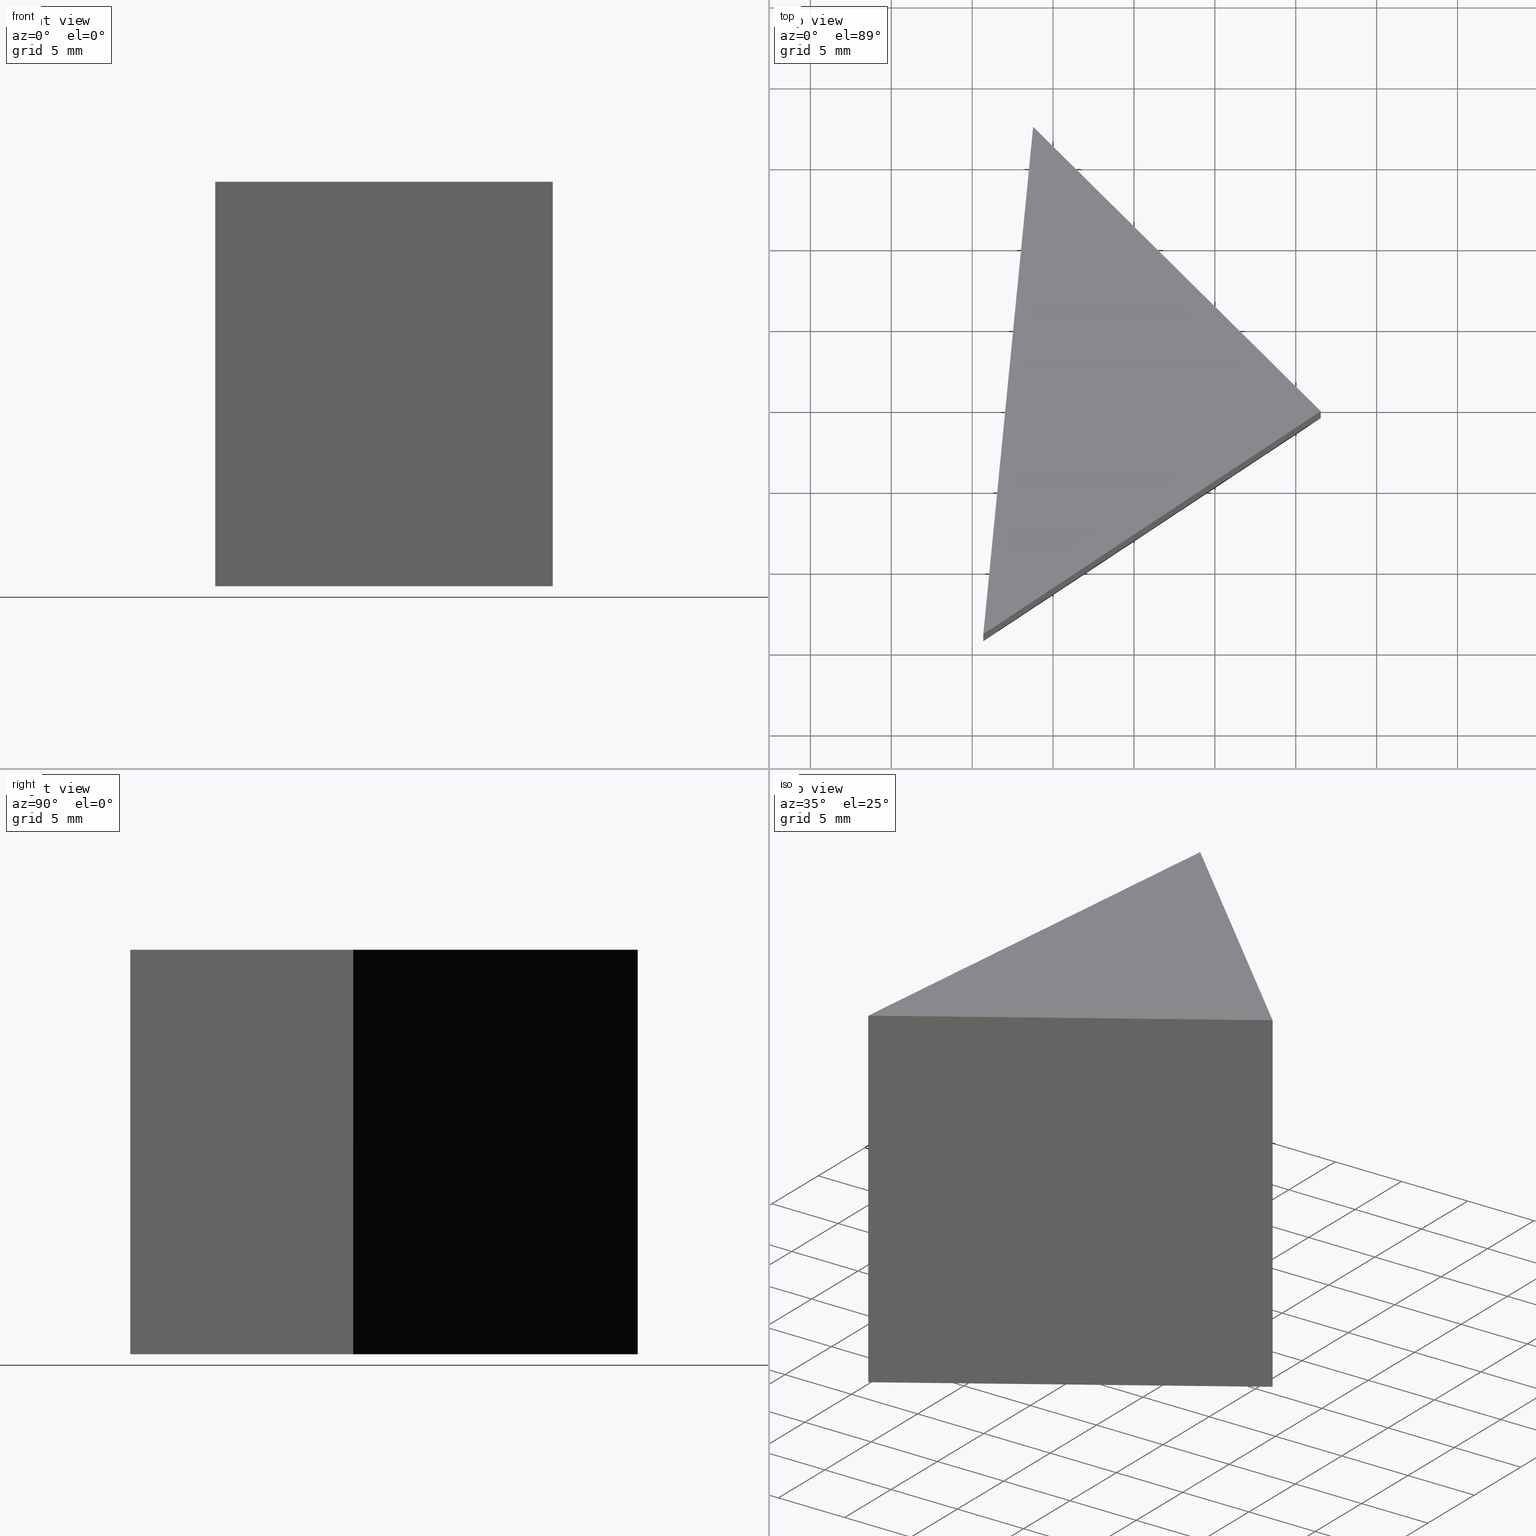
[diagram: canonical four-view strip — front | top / right | iso, engineering-drawing reading convention]
A machine part, canonical four-view strip (front | top / right | iso — engineering-drawing reading convention). The complete STEP part file that produces these views, byte-faithful:
ISO-10303-21;
HEADER;
FILE_DESCRIPTION (( 'STEP AP214' ),
    '1' );
FILE_NAME ('469005.STEP',
    '2019-08-23T05:46:01',
    ( 'user' ),
    ( '΢���й�' ),
    'SwSTEP 2.0',
    'SolidWorks 2016',
    '' );
FILE_SCHEMA (( 'AUTOMOTIVE_DESIGN' ));
ENDSEC;

DATA;
#1 = LINE ( 'NONE', #17, #63 ) ;
#2 = ORIENTED_EDGE ( 'NONE', *, *, #49, .T. ) ;
#3 = ADVANCED_BREP_SHAPE_REPRESENTATION ( '469005', ( #39, #70 ), #143 ) ;
#4 = AXIS2_PLACEMENT_3D ( 'NONE', #106, #128, #51 ) ;
#5 = VERTEX_POINT ( 'NONE', #54 ) ;
#6 = PRESENTATION_STYLE_ASSIGNMENT (( #140 ) ) ;
#7 =( NAMED_UNIT ( * ) PLANE_ANGLE_UNIT ( ) SI_UNIT ( $, .RADIAN. ) );
#8 = PRODUCT_RELATED_PRODUCT_CATEGORY ( 'part', '', ( #84 ) ) ;
#9 = CARTESIAN_POINT ( 'NONE',  ( 21.54217066758669200, 14.63250925510907100, 25.00000000000000000 ) ) ;
#10 = DIRECTION ( 'NONE',  ( -0.5514015260034010900, 0.8342399877260263700, 0.0000000000000000000 ) ) ;
#11 = SURFACE_STYLE_USAGE ( .BOTH. , #146 ) ;
#12 = ORIENTED_EDGE ( 'NONE', *, *, #100, .T. ) ;
#13 = VECTOR ( 'NONE', #78, 1000.000000000000000 ) ;
#14 = CARTESIAN_POINT ( 'NONE',  ( 21.54217066758669200, 14.63250925510907100, 25.00000000000000000 ) ) ;
#15 = COLOUR_RGB ( '',1.000000000000000000, 1.000000000000000000, 1.000000000000000000 ) ;
#16 = APPLICATION_PROTOCOL_DEFINITION ( 'draft international standard', 'automotive_design', 1998, #94 ) ;
#17 = CARTESIAN_POINT ( 'NONE',  ( 0.6861709744360347000, 0.8474711050240408800, 0.0000000000000000000 ) ) ;
#18 = DIRECTION ( 'NONE',  ( 0.0000000000000000000, 0.0000000000000000000, 1.000000000000000000 ) ) ;
#19 = EDGE_LOOP ( 'NONE', ( #150, #2, #88 ) ) ;
#20 = SHAPE_DEFINITION_REPRESENTATION ( #107, #3 ) ;
#21 = ORIENTED_EDGE ( 'NONE', *, *, #34, .T. ) ;
#22 = EDGE_LOOP ( 'NONE', ( #42, #103, #155, #21 ) ) ;
#23 = SURFACE_SIDE_STYLE ('',( #148 ) ) ;
#24 = PLANE ( 'NONE',  #4 ) ;
#25 = ADVANCED_FACE ( 'NONE', ( #160 ), #30, .F. ) ;
#26 = EDGE_CURVE ( 'NONE', #32, #5, #28, .T. ) ;
#27 = DIRECTION ( 'NONE',  ( 1.000000000000000000, 0.0000000000000000000, 0.0000000000000000000 ) ) ;
#28 = LINE ( 'NONE', #156, #126 ) ;
#29 =( NAMED_UNIT ( * ) SI_UNIT ( $, .STERADIAN. ) SOLID_ANGLE_UNIT ( ) );
#30 = PLANE ( 'NONE',  #72 ) ;
#31 = PRESENTATION_LAYER_ASSIGNMENT (  '', '', ( #91 ) ) ;
#32 = VERTEX_POINT ( 'NONE', #98 ) ;
#33 = VERTEX_POINT ( 'NONE', #144 ) ;
#34 = EDGE_CURVE ( 'NONE', #5, #85, #95, .T. ) ;
#35 = EDGE_CURVE ( 'NONE', #33, #141, #122, .T. ) ;
#36 = LINE ( 'NONE', #90, #66 ) ;
#37 = VECTOR ( 'NONE', #64, 999.9999999999998900 ) ;
#38 = VERTEX_POINT ( 'NONE', #59 ) ;
#39 = MANIFOLD_SOLID_BREP ( '͹̨-����1', #169 ) ;
#40 = DIRECTION ( 'NONE',  ( 0.09777970958415356500, 0.9952080829623715100, 0.0000000000000000000 ) ) ;
#41 = MECHANICAL_DESIGN_GEOMETRIC_PRESENTATION_REPRESENTATION (  '', ( #91 ), #136 ) ;
#42 = ORIENTED_EDGE ( 'NONE', *, *, #149, .T. ) ;
#43 = DIRECTION ( 'NONE',  ( -0.09777970958415356500, -0.9952080829623715100, -0.0000000000000000000 ) ) ;
#44 = ORIENTED_EDGE ( 'NONE', *, *, #35, .T. ) ;
#45 = ADVANCED_FACE ( 'NONE', ( #159 ), #81, .F. ) ;
#46 = ADVANCED_FACE ( 'NONE', ( #167 ), #135, .F. ) ;
#47 = ORIENTED_EDGE ( 'NONE', *, *, #35, .F. ) ;
#48 = UNCERTAINTY_MEASURE_WITH_UNIT (LENGTH_MEASURE( 1.000000000000000100E-005 ), #139, 'distance_accuracy_value', 'NONE');
#49 = EDGE_CURVE ( 'NONE', #38, #32, #75, .T. ) ;
#50 = CARTESIAN_POINT ( 'NONE',  ( 21.54217066758669200, 14.63250925510907100, 25.00000000000000000 ) ) ;
#51 = DIRECTION ( 'NONE',  ( -1.000000000000000000, 0.0000000000000000000, 0.0000000000000000000 ) ) ;
#52 = EDGE_LOOP ( 'NONE', ( #158, #58, #47 ) ) ;
#53 = LINE ( 'NONE', #50, #151 ) ;
#54 = CARTESIAN_POINT ( 'NONE',  ( 0.6861709744360347000, 0.8474711050240408800, 25.00000000000000000 ) ) ;
#55 = MECHANICAL_DESIGN_GEOMETRIC_PRESENTATION_REPRESENTATION (  '', ( #108 ), #74 ) ;
#56 = CARTESIAN_POINT ( 'NONE',  ( 0.6861709744360347000, 0.8474711050240408800, 25.00000000000000000 ) ) ;
#57 =( LENGTH_UNIT ( ) NAMED_UNIT ( * ) SI_UNIT ( .MILLI., .METRE. ) );
#58 = ORIENTED_EDGE ( 'NONE', *, *, #86, .F. ) ;
#59 = CARTESIAN_POINT ( 'NONE',  ( 21.54217066758669200, 14.63250925510907100, 25.00000000000000000 ) ) ;
#60 = LINE ( 'NONE', #164, #13 ) ;
#61 = PRESENTATION_LAYER_ASSIGNMENT (  '', '', ( #108 ) ) ;
#62 = VECTOR ( 'NONE', #124, 1000.000000000000000 ) ;
#63 = VECTOR ( 'NONE', #127, 1000.000000000000100 ) ;
#64 = DIRECTION ( 'NONE',  ( -0.7109728236074630600, 0.7032194850056640000, 0.0000000000000000000 ) ) ;
#65 = DIRECTION ( 'NONE',  ( -0.7109728236074630600, 0.7032194850056640000, 0.0000000000000000000 ) ) ;
#66 = VECTOR ( 'NONE', #117, 1000.000000000000000 ) ;
#67 = FILL_AREA_STYLE ('',( #96 ) ) ;
#68 = EDGE_LOOP ( 'NONE', ( #44, #147, #161, #69 ) ) ;
#69 = ORIENTED_EDGE ( 'NONE', *, *, #153, .T. ) ;
#70 = AXIS2_PLACEMENT_3D ( 'NONE', #111, #18, #27 ) ;
#71 = DIRECTION ( 'NONE',  ( -0.8342399877260263700, -0.5514015260034010900, 0.0000000000000000000 ) ) ;
#72 = AXIS2_PLACEMENT_3D ( 'NONE', #56, #130, #40 ) ;
#73 = EDGE_CURVE ( 'NONE', #5, #38, #112, .T. ) ;
#74 =( GEOMETRIC_REPRESENTATION_CONTEXT ( 3 ) GLOBAL_UNCERTAINTY_ASSIGNED_CONTEXT ( ( #134 ) ) GLOBAL_UNIT_ASSIGNED_CONTEXT ( ( #57, #7, #168 ) ) REPRESENTATION_CONTEXT ( 'NONE', 'WORKASPACE' ) );
#75 = LINE ( 'NONE', #113, #99 ) ;
#76 = PRODUCT_DEFINITION ( 'δ֪', '', #105, #83 ) ;
#77 = AXIS2_PLACEMENT_3D ( 'NONE', #162, #82, #129 ) ;
#78 = DIRECTION ( 'NONE',  ( 0.8342399877260263700, 0.5514015260034012000, -0.0000000000000000000 ) ) ;
#79 = DIRECTION ( 'NONE',  ( 0.8342399877260263700, 0.5514015260034012000, -0.0000000000000000000 ) ) ;
#80 = DIRECTION ( 'NONE',  ( 0.0000000000000000000, 0.0000000000000000000, -1.000000000000000000 ) ) ;
#81 = PLANE ( 'NONE',  #115 ) ;
#82 = DIRECTION ( 'NONE',  ( -0.7032194850056640000, -0.7109728236074630600, 0.0000000000000000000 ) ) ;
#83 = PRODUCT_DEFINITION_CONTEXT ( 'detailed design', #94, 'design' ) ;
#84 = PRODUCT ( '469005', '469005', '', ( #125 ) ) ;
#85 = VERTEX_POINT ( 'NONE', #114 ) ;
#86 = EDGE_CURVE ( 'NONE', #141, #85, #1, .T. ) ;
#87 = FACE_OUTER_BOUND ( 'NONE', #52, .T. ) ;
#88 = ORIENTED_EDGE ( 'NONE', *, *, #26, .T. ) ;
#89 = PRESENTATION_STYLE_ASSIGNMENT (( #11 ) ) ;
#90 = CARTESIAN_POINT ( 'NONE',  ( 3.767850077400120700, 32.21299638025067200, 25.00000000000000000 ) ) ;
#91 = STYLED_ITEM ( 'NONE', ( #6 ), #3 ) ;
#92 = DIRECTION ( 'NONE',  ( -1.000000000000000000, 0.0000000000000000000, 0.0000000000000000000 ) ) ;
#93 = ORIENTED_EDGE ( 'NONE', *, *, #26, .F. ) ;
#94 = APPLICATION_CONTEXT ( 'automotive_design' ) ;
#95 = LINE ( 'NONE', #152, #62 ) ;
#96 = FILL_AREA_STYLE_COLOUR ( '', #132 ) ;
#97 = APPLICATION_CONTEXT ( 'automotive_design' ) ;
#98 = CARTESIAN_POINT ( 'NONE',  ( 3.767850077400120700, 32.21299638025067200, 25.00000000000000000 ) ) ;
#99 = VECTOR ( 'NONE', #65, 999.9999999999998900 ) ;
#100 = EDGE_CURVE ( 'NONE', #32, #141, #36, .T. ) ;
#101 = VECTOR ( 'NONE', #79, 1000.000000000000000 ) ;
#102 = SURFACE_STYLE_FILL_AREA ( #67 ) ;
#103 = ORIENTED_EDGE ( 'NONE', *, *, #153, .F. ) ;
#104 = APPLICATION_PROTOCOL_DEFINITION ( 'draft international standard', 'automotive_design', 1998, #97 ) ;
#105 = PRODUCT_DEFINITION_FORMATION_WITH_SPECIFIED_SOURCE ( '�κ�', '', #84, .NOT_KNOWN. ) ;
#106 = CARTESIAN_POINT ( 'NONE',  ( 0.0000000000000000000, 0.0000000000000000000, 25.00000000000000000 ) ) ;
#107 = PRODUCT_DEFINITION_SHAPE ( 'NONE', 'NONE',  #76 ) ;
#108 = STYLED_ITEM ( 'NONE', ( #89 ), #39 ) ;
#109 = DIRECTION ( 'NONE',  ( -0.0000000000000000000, -0.0000000000000000000, -1.000000000000000000 ) ) ;
#110 =( NAMED_UNIT ( * ) PLANE_ANGLE_UNIT ( ) SI_UNIT ( $, .RADIAN. ) );
#111 = CARTESIAN_POINT ( 'NONE',  ( 0.0000000000000000000, 0.0000000000000000000, 0.0000000000000000000 ) ) ;
#112 = LINE ( 'NONE', #9, #101 ) ;
#113 = CARTESIAN_POINT ( 'NONE',  ( 21.54217066758669200, 14.63250925510907100, 25.00000000000000000 ) ) ;
#114 = CARTESIAN_POINT ( 'NONE',  ( 0.6861709744360347000, 0.8474711050240408800, 0.0000000000000000000 ) ) ;
#115 = AXIS2_PLACEMENT_3D ( 'NONE', #14, #10, #71 ) ;
#116 = ORIENTED_EDGE ( 'NONE', *, *, #34, .F. ) ;
#117 = DIRECTION ( 'NONE',  ( -0.0000000000000000000, -0.0000000000000000000, -1.000000000000000000 ) ) ;
#118 =( NAMED_UNIT ( * ) SI_UNIT ( $, .STERADIAN. ) SOLID_ANGLE_UNIT ( ) );
#119 = FILL_AREA_STYLE_COLOUR ( '', #15 ) ;
#120 = ORIENTED_EDGE ( 'NONE', *, *, #86, .T. ) ;
#121 = EDGE_LOOP ( 'NONE', ( #120, #116, #93, #12 ) ) ;
#122 = LINE ( 'NONE', #142, #37 ) ;
#123 = UNCERTAINTY_MEASURE_WITH_UNIT (LENGTH_MEASURE( 1.000000000000000100E-005 ), #166, 'distance_accuracy_value', 'NONE');
#124 = DIRECTION ( 'NONE',  ( -0.0000000000000000000, -0.0000000000000000000, -1.000000000000000000 ) ) ;
#125 = PRODUCT_CONTEXT ( 'NONE', #97, 'mechanical' ) ;
#126 = VECTOR ( 'NONE', #43, 1000.000000000000100 ) ;
#127 = DIRECTION ( 'NONE',  ( -0.09777970958415356500, -0.9952080829623715100, -0.0000000000000000000 ) ) ;
#128 = DIRECTION ( 'NONE',  ( 0.0000000000000000000, 0.0000000000000000000, -1.000000000000000000 ) ) ;
#129 = DIRECTION ( 'NONE',  ( 0.7109728236074630600, -0.7032194850056640000, 0.0000000000000000000 ) ) ;
#130 = DIRECTION ( 'NONE',  ( 0.9952080829623715100, -0.09777970958415356500, 0.0000000000000000000 ) ) ;
#131 = FILL_AREA_STYLE ('',( #119 ) ) ;
#132 = COLOUR_RGB ( '',1.000000000000000000, 1.000000000000000000, 1.000000000000000000 ) ;
#133 = FACE_OUTER_BOUND ( 'NONE', #19, .T. ) ;
#134 = UNCERTAINTY_MEASURE_WITH_UNIT (LENGTH_MEASURE( 1.000000000000000100E-005 ), #57, 'distance_accuracy_value', 'NONE');
#135 = PLANE ( 'NONE',  #77 ) ;
#136 =( GEOMETRIC_REPRESENTATION_CONTEXT ( 3 ) GLOBAL_UNCERTAINTY_ASSIGNED_CONTEXT ( ( #123 ) ) GLOBAL_UNIT_ASSIGNED_CONTEXT ( ( #166, #110, #29 ) ) REPRESENTATION_CONTEXT ( 'NONE', 'WORKASPACE' ) );
#137 = CARTESIAN_POINT ( 'NONE',  ( 3.767850077400120700, 32.21299638025067200, 0.0000000000000000000 ) ) ;
#138 = ADVANCED_FACE ( 'NONE', ( #133 ), #24, .F. ) ;
#139 =( LENGTH_UNIT ( ) NAMED_UNIT ( * ) SI_UNIT ( .MILLI., .METRE. ) );
#140 = SURFACE_STYLE_USAGE ( .BOTH. , #23 ) ;
#141 = VERTEX_POINT ( 'NONE', #137 ) ;
#142 = CARTESIAN_POINT ( 'NONE',  ( 21.54217066758669200, 14.63250925510907100, 0.0000000000000000000 ) ) ;
#143 =( GEOMETRIC_REPRESENTATION_CONTEXT ( 3 ) GLOBAL_UNCERTAINTY_ASSIGNED_CONTEXT ( ( #48 ) ) GLOBAL_UNIT_ASSIGNED_CONTEXT ( ( #139, #157, #118 ) ) REPRESENTATION_CONTEXT ( 'NONE', 'WORKASPACE' ) );
#144 = CARTESIAN_POINT ( 'NONE',  ( 21.54217066758669200, 14.63250925510907100, 0.0000000000000000000 ) ) ;
#145 = AXIS2_PLACEMENT_3D ( 'NONE', #163, #80, #92 ) ;
#146 = SURFACE_SIDE_STYLE ('',( #102 ) ) ;
#147 = ORIENTED_EDGE ( 'NONE', *, *, #100, .F. ) ;
#148 = SURFACE_STYLE_FILL_AREA ( #131 ) ;
#149 = EDGE_CURVE ( 'NONE', #85, #33, #60, .T. ) ;
#150 = ORIENTED_EDGE ( 'NONE', *, *, #73, .T. ) ;
#151 = VECTOR ( 'NONE', #109, 1000.000000000000000 ) ;
#152 = CARTESIAN_POINT ( 'NONE',  ( 0.6861709744360347000, 0.8474711050240408800, 25.00000000000000000 ) ) ;
#153 = EDGE_CURVE ( 'NONE', #38, #33, #53, .T. ) ;
#154 = PLANE ( 'NONE',  #145 ) ;
#155 = ORIENTED_EDGE ( 'NONE', *, *, #73, .F. ) ;
#156 = CARTESIAN_POINT ( 'NONE',  ( 0.6861709744360347000, 0.8474711050240408800, 25.00000000000000000 ) ) ;
#157 =( NAMED_UNIT ( * ) PLANE_ANGLE_UNIT ( ) SI_UNIT ( $, .RADIAN. ) );
#158 = ORIENTED_EDGE ( 'NONE', *, *, #149, .F. ) ;
#159 = FACE_OUTER_BOUND ( 'NONE', #22, .T. ) ;
#160 = FACE_OUTER_BOUND ( 'NONE', #121, .T. ) ;
#161 = ORIENTED_EDGE ( 'NONE', *, *, #49, .F. ) ;
#162 = CARTESIAN_POINT ( 'NONE',  ( 21.54217066758669200, 14.63250925510907100, 25.00000000000000000 ) ) ;
#163 = CARTESIAN_POINT ( 'NONE',  ( 0.0000000000000000000, 0.0000000000000000000, 0.0000000000000000000 ) ) ;
#164 = CARTESIAN_POINT ( 'NONE',  ( 21.54217066758669200, 14.63250925510907100, 0.0000000000000000000 ) ) ;
#165 = ADVANCED_FACE ( 'NONE', ( #87 ), #154, .T. ) ;
#166 =( LENGTH_UNIT ( ) NAMED_UNIT ( * ) SI_UNIT ( .MILLI., .METRE. ) );
#167 = FACE_OUTER_BOUND ( 'NONE', #68, .T. ) ;
#168 =( NAMED_UNIT ( * ) SI_UNIT ( $, .STERADIAN. ) SOLID_ANGLE_UNIT ( ) );
#169 = CLOSED_SHELL ( 'NONE', ( #45, #46, #25, #138, #165 ) ) ;
ENDSEC;
END-ISO-10303-21;
